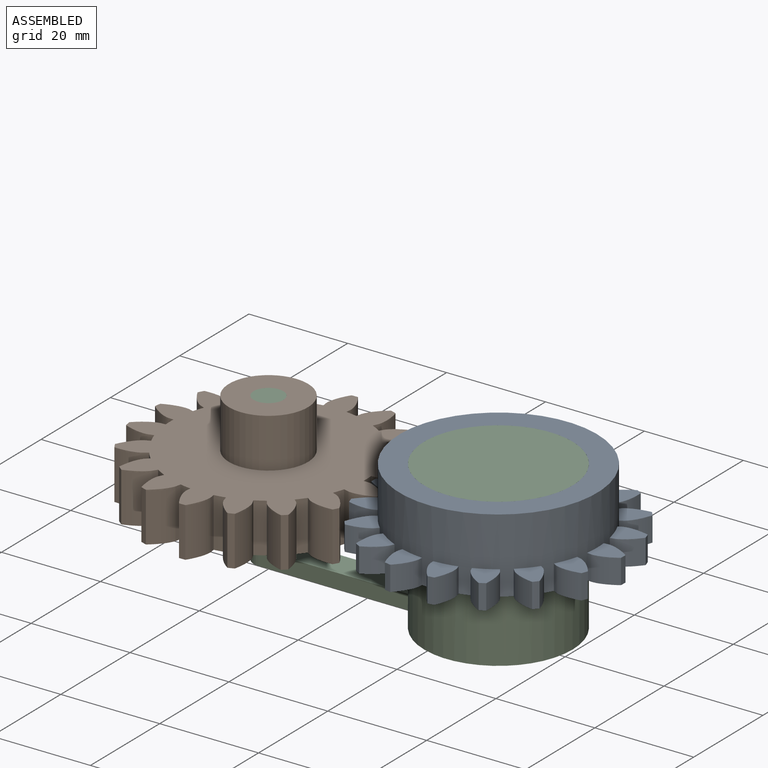
[diagram: assembled view]
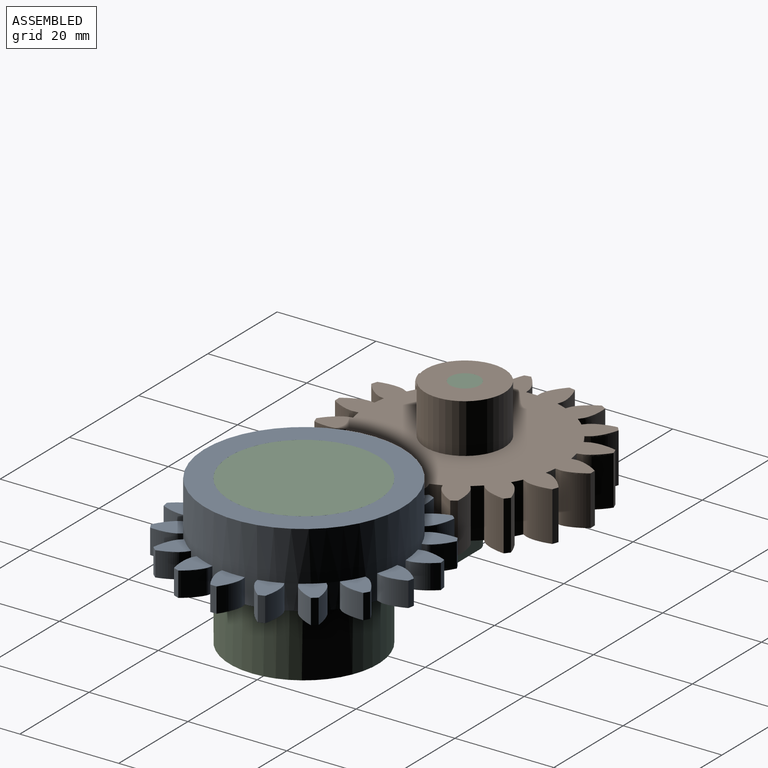
[diagram: assembled view, second angle]
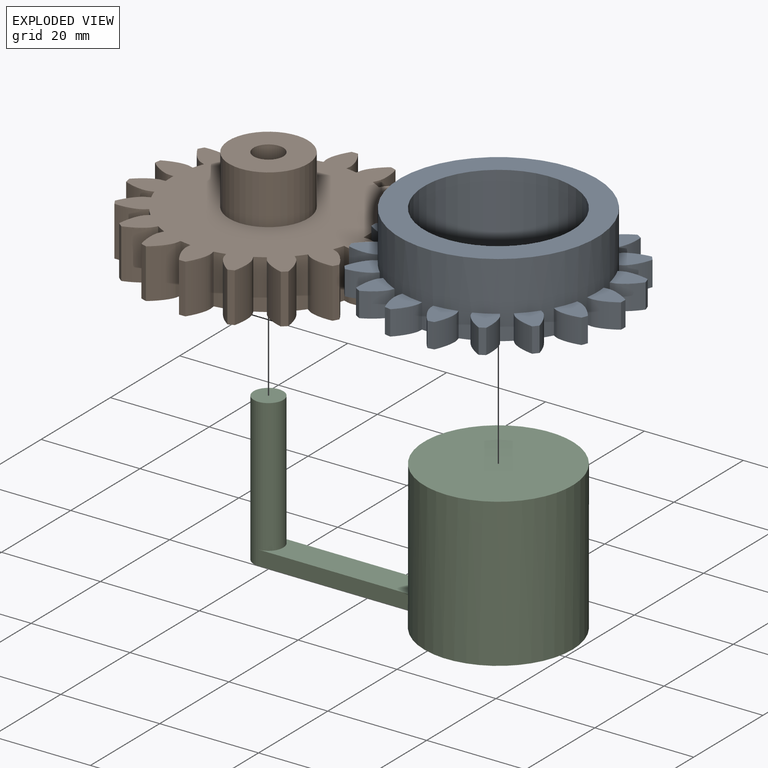
[diagram: exploded view]
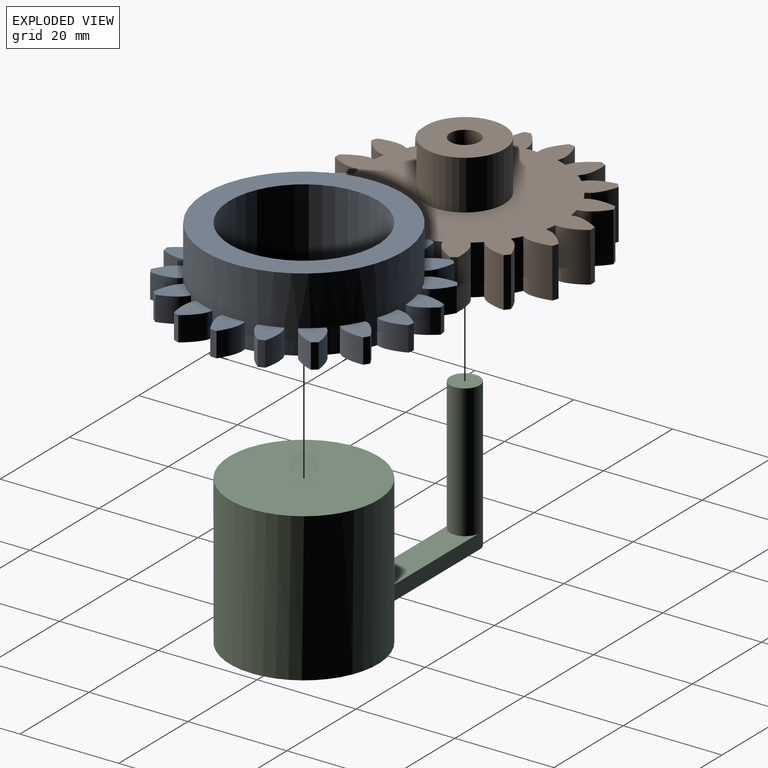
[diagram: exploded view, second angle]
ASSEMBLY  parts=3 mates=2
PART A: 94 faces, bbox 51.1x15x50.6 mm
  f0: plane 6.12x4.95mm, normal (0,-1,0), area 21mm2, adj f33,f43,f62,f92
  f1: plane 6.43x5.47mm, normal (0,-1,0), area 21mm2, adj f27,f61,f65,f92
  f2: plane 6.29x5.96mm, normal (0,-1,0), area 21mm2, adj f26,f59,f64,f92
  f3: plane 6.38x5.15mm, normal (0,-1,0), area 21mm2, adj f28,f56,f58,f92
  f4: plane 5.7x4.9mm, normal (0,-1,0), area 21mm2, adj f29,f55,f77,f92
  f5: plane 6.38x5.15mm, normal (0,-1,0), area 21mm2, adj f22,f74,f76,f92
  f6: plane 6.29x5.96mm, normal (0,-1,0), area 21mm2, adj f23,f68,f73,f92
  f7: plane 6.43x5.47mm, normal (0,-1,0), area 21mm2, adj f25,f67,f71,f92
  f8: plane 6.12x4.95mm, normal (0,-1,0), area 21mm2, adj f24,f70,f89,f92
  f9: plane 6.12x4.95mm, normal (0,-1,0), area 21mm2, adj f18,f86,f88,f92
  f10: plane 6.43x5.47mm, normal (0,-1,0), area 21mm2, adj f19,f80,f85,f92
  f11: plane 6.29x5.96mm, normal (0,-1,0), area 21mm2, adj f21,f79,f83,f92
  f12: plane 6.38x5.15mm, normal (0,-1,0), area 21mm2, adj f20,f38,f82,f92
  f13: plane 5.7x4.9mm, normal (0,-1,0), area 21mm2, adj f36,f37,f41,f92
  f14: plane 6.38x5.15mm, normal (0,-1,0), area 21mm2, adj f34,f40,f50,f92
  f15: plane 6.29x5.96mm, normal (0,-1,0), area 21mm2, adj f31,f49,f53,f92
  f16: plane 6.43x5.47mm, normal (0,-1,0), area 21mm2, adj f30,f47,f52,f92
  f17: plane 6.12x4.95mm, normal (0,-1,0), area 21mm2, adj f32,f44,f46,f92
  f18: cylinder r=25.56mm len=5mm, axis (0,1,0), area 6.4mm2, adj f9,f35,f86,f88
  f19: cylinder r=25.56mm len=5mm, axis (0,1,0), area 6.4mm2, adj f10,f35,f80,f85
  f20: cylinder r=25.56mm len=5mm, axis (0,1,0), area 6.4mm2, adj f12,f35,f38,f82
  f21: cylinder r=25.56mm len=5mm, axis (0,1,0), area 6.4mm2, adj f11,f35,f79,f83
  f22: cylinder r=25.56mm len=5mm, axis (0,1,0), area 6.4mm2, adj f5,f35,f74,f76
  f23: cylinder r=25.56mm len=5mm, axis (0,1,0), area 6.4mm2, adj f6,f35,f68,f73
  f24: cylinder r=25.56mm len=5mm, axis (0,1,0), area 6.4mm2, adj f8,f35,f70,f89
  f25: cylinder r=25.56mm len=5mm, axis (0,1,0), area 6.4mm2, adj f7,f35,f67,f71
  f26: cylinder r=25.56mm len=5mm, axis (0,1,0), area 6.4mm2, adj f2,f35,f59,f64
  f27: cylinder r=25.56mm len=5mm, axis (0,1,0), area 6.4mm2, adj f1,f35,f61,f65
  f28: cylinder r=25.56mm len=5mm, axis (0,1,0), area 6.4mm2, adj f3,f35,f56,f58
  f29: cylinder r=25.56mm len=5mm, axis (0,1,0), area 6.4mm2, adj f4,f35,f55,f77
  f30: cylinder r=25.56mm len=5mm, axis (0,1,0), area 6.4mm2, adj f16,f35,f47,f52
  f31: cylinder r=25.56mm len=5mm, axis (0,1,0), area 6.4mm2, adj f15,f35,f49,f53
  f32: cylinder r=25.56mm len=5mm, axis (0,1,0), area 6.4mm2, adj f17,f35,f44,f46
  f33: cylinder r=25.56mm len=5mm, axis (0,1,0), area 6.4mm2, adj f0,f35,f43,f62
  f34: cylinder r=25.56mm len=5mm, axis (0,1,0), area 6.4mm2, adj f14,f35,f40,f50
  f35: plane 51.11x50.54mm, normal (0,1,0), area 928.7mm2, adj f18,f19,f20,f21,f22,f23,f24,f25
  f36: cylinder r=25.56mm len=5mm, axis (0,1,0), area 6.4mm2, adj f13,f35,f37,f41
  f37: extruded ~5.68x5mm, area 30.6mm2, adj f13,f35,f36,f39
  f38: extruded ~5x4.75mm, area 30.6mm2, adj f12,f20,f35,f39
  f39: cylinder r=20.01mm len=5mm, axis (0,1,0), area 11.5mm2, adj f35,f37,f38,f92
  f40: extruded ~5x4.75mm, area 30.6mm2, adj f14,f34,f35,f42
  f41: extruded ~5.68x5mm, area 30.6mm2, adj f13,f35,f36,f42
  f42: cylinder r=20.01mm len=5mm, axis (0,1,0), area 11.5mm2, adj f35,f40,f41,f92
  f43: extruded ~5.3x5mm, area 30.6mm2, adj f0,f33,f35,f45
  f44: extruded ~5.3x5mm, area 30.6mm2, adj f17,f32,f35,f45
  f45: cylinder r=20.01mm len=5mm, axis (0,1,0), area 11.5mm2, adj f35,f43,f44,f92
  f46: extruded ~5.89x5mm, area 30.6mm2, adj f17,f32,f35,f48
  f47: extruded ~5x4.32mm, area 30.6mm2, adj f16,f30,f35,f48
  f48: cylinder r=20.01mm len=5mm, axis (0,1,0), area 11.5mm2, adj f35,f46,f47,f92
  f49: extruded ~5x4.96mm, area 30.6mm2, adj f15,f31,f35,f51
  f50: extruded ~5.92x5mm, area 30.6mm2, adj f14,f34,f35,f51
  f51: cylinder r=20.01mm len=5mm, axis (0,1,0), area 11.5mm2, adj f35,f49,f50,f92
  f52: extruded ~5.77x5mm, area 30.6mm2, adj f16,f30,f35,f54
  f53: extruded ~5.45x5mm, area 30.6mm2, adj f15,f31,f35,f54
  f54: cylinder r=20.01mm len=5mm, axis (0,1,0), area 11.5mm2, adj f35,f52,f53,f92
  f55: extruded ~5.68x5mm, area 30.6mm2, adj f4,f29,f35,f57
  f56: extruded ~5x4.75mm, area 30.6mm2, adj f3,f28,f35,f57
  f57: cylinder r=20.01mm len=5mm, axis (0,1,0), area 11.5mm2, adj f35,f55,f56,f92
  f58: extruded ~5.92x5mm, area 30.6mm2, adj f3,f28,f35,f60
  f59: extruded ~5x4.96mm, area 30.6mm2, adj f2,f26,f35,f60
  f60: cylinder r=20.01mm len=5mm, axis (0,1,0), area 11.5mm2, adj f35,f58,f59,f92
  f61: extruded ~5x4.32mm, area 30.6mm2, adj f1,f27,f35,f63
  f62: extruded ~5.89x5mm, area 30.6mm2, adj f0,f33,f35,f63
  f63: cylinder r=20.01mm len=5mm, axis (0,1,0), area 11.5mm2, adj f35,f61,f62,f92
  f64: extruded ~5.45x5mm, area 30.6mm2, adj f2,f26,f35,f66
  f65: extruded ~5.77x5mm, area 30.6mm2, adj f1,f27,f35,f66
  f66: cylinder r=20.01mm len=5mm, axis (0,1,0), area 11.5mm2, adj f35,f64,f65,f92
  f67: extruded ~5.77x5mm, area 30.6mm2, adj f7,f25,f35,f69
  f68: extruded ~5.45x5mm, area 30.6mm2, adj f6,f23,f35,f69
  f69: cylinder r=20.01mm len=5mm, axis (0,1,0), area 11.5mm2, adj f35,f67,f68,f92
  f70: extruded ~5.89x5mm, area 30.6mm2, adj f8,f24,f35,f72
  f71: extruded ~5x4.32mm, area 30.6mm2, adj f7,f25,f35,f72
  f72: cylinder r=20.01mm len=5mm, axis (0,1,0), area 11.5mm2, adj f35,f70,f71,f92
  f73: extruded ~5x4.96mm, area 30.6mm2, adj f6,f23,f35,f75
  f74: extruded ~5.92x5mm, area 30.6mm2, adj f5,f22,f35,f75
  f75: cylinder r=20.01mm len=5mm, axis (0,1,0), area 11.5mm2, adj f35,f73,f74,f92
  f76: extruded ~5x4.75mm, area 30.6mm2, adj f5,f22,f35,f78
  f77: extruded ~5.68x5mm, area 30.6mm2, adj f4,f29,f35,f78
  f78: cylinder r=20.01mm len=5mm, axis (0,1,0), area 11.5mm2, adj f35,f76,f77,f92
  f79: extruded ~5.45x5mm, area 30.6mm2, adj f11,f21,f35,f81
  f80: extruded ~5.77x5mm, area 30.6mm2, adj f10,f19,f35,f81
  f81: cylinder r=20.01mm len=5mm, axis (0,1,0), area 11.5mm2, adj f35,f79,f80,f92
  f82: extruded ~5.92x5mm, area 30.6mm2, adj f12,f20,f35,f84
  f83: extruded ~5x4.96mm, area 30.6mm2, adj f11,f21,f35,f84
  f84: cylinder r=20.01mm len=5mm, axis (0,1,0), area 11.5mm2, adj f35,f82,f83,f92
  f85: extruded ~5x4.32mm, area 30.6mm2, adj f10,f19,f35,f87
  f86: extruded ~5.89x5mm, area 30.6mm2, adj f9,f18,f35,f87
  f87: cylinder r=20.01mm len=5mm, axis (0,1,0), area 11.5mm2, adj f35,f85,f86,f92
  f88: extruded ~5.3x5mm, area 30.6mm2, adj f9,f18,f35,f90
  f89: extruded ~5.3x5mm, area 30.6mm2, adj f8,f24,f35,f90
  f90: cylinder r=20.01mm len=5mm, axis (0,1,0), area 11.5mm2, adj f35,f88,f89,f92
  f91: cylinder r=15mm len=30mm, axis (0,-1,0), area 1413.7mm2, adj f35,f93
  f92: cylinder r=20mm len=40mm, axis (0,1,0), area 1256.6mm2, adj f0,f1,f2,f3,f4,f5,f6,f7
  f93: plane 40x40mm, normal (0,-1,0), area 549.8mm2, adj f91,f92
PART B: 77 faces, bbox 50.5x20x51.1 mm
  f0: cylinder r=25.56mm len=10mm, axis (0,1,0), area 12.7mm2, adj f17,f18,f69,f71
  f1: cylinder r=25.56mm len=10mm, axis (0,1,0), area 12.7mm2, adj f17,f18,f63,f68
  f2: cylinder r=25.56mm len=10mm, axis (0,1,0), area 12.7mm2, adj f17,f18,f21,f65
  f3: cylinder r=25.56mm len=10mm, axis (0,1,0), area 12.7mm2, adj f17,f18,f62,f66
  f4: cylinder r=25.56mm len=10mm, axis (0,1,0), area 12.7mm2, adj f17,f18,f54,f59
  f5: cylinder r=25.56mm len=10mm, axis (0,1,0), area 12.7mm2, adj f17,f18,f56,f60
  f6: cylinder r=25.56mm len=10mm, axis (0,1,0), area 12.7mm2, adj f17,f18,f51,f53
  f7: cylinder r=25.56mm len=10mm, axis (0,1,0), area 12.7mm2, adj f17,f18,f50,f72
  f8: cylinder r=25.56mm len=10mm, axis (0,1,0), area 12.7mm2, adj f17,f18,f42,f47
  f9: cylinder r=25.56mm len=10mm, axis (0,1,0), area 12.7mm2, adj f17,f18,f44,f48
  f10: cylinder r=25.56mm len=10mm, axis (0,1,0), area 12.7mm2, adj f17,f18,f39,f41
  f11: cylinder r=25.56mm len=10mm, axis (0,1,0), area 12.7mm2, adj f17,f18,f38,f57
  f12: cylinder r=25.56mm len=10mm, axis (0,1,0), area 12.7mm2, adj f17,f18,f35,f45
  f13: cylinder r=25.56mm len=10mm, axis (0,1,0), area 12.7mm2, adj f17,f18,f32,f36
  f14: cylinder r=25.56mm len=10mm, axis (0,1,0), area 12.7mm2, adj f17,f18,f27,f29
  f15: cylinder r=25.56mm len=10mm, axis (0,1,0), area 12.7mm2, adj f17,f18,f26,f33
  f16: cylinder r=25.56mm len=10mm, axis (0,1,0), area 12.7mm2, adj f17,f18,f23,f30
  f17: plane 51.11x50.54mm, normal (0,-1,0), area 1426.3mm2, adj f0,f1,f2,f3,f4,f5,f6,f7
  f18: plane 51.11x50.54mm, normal (0,1,0), area 1599.1mm2, adj f0,f1,f2,f3,f4,f5,f6,f7
  f19: cylinder r=25.56mm len=10mm, axis (0,1,0), area 12.7mm2, adj f17,f18,f20,f24
  f20: extruded ~10x5.5mm, area 63.2mm2, adj f17,f18,f19,f22
  f21: extruded ~10x5.5mm, area 63.2mm2, adj f2,f17,f18,f22
  f22: cylinder r=19.81mm len=10mm, axis (0,1,0), area 22.7mm2, adj f17,f18,f20,f21
  f23: extruded ~10x4.39mm, area 63.2mm2, adj f16,f17,f18,f25
  f24: extruded ~10x6.08mm, area 63.2mm2, adj f17,f18,f19,f25
  f25: cylinder r=19.81mm len=10mm, axis (0,1,0), area 22.7mm2, adj f17,f18,f23,f24
  f26: extruded ~10x6.1mm, area 63.2mm2, adj f15,f17,f18,f28
  f27: extruded ~10x5.07mm, area 63.2mm2, adj f14,f17,f18,f28
  f28: cylinder r=19.81mm len=10mm, axis (0,1,0), area 22.7mm2, adj f17,f18,f26,f27
  f29: extruded ~10x5.58mm, area 63.2mm2, adj f14,f17,f18,f31
  f30: extruded ~10x5.93mm, area 63.2mm2, adj f16,f17,f18,f31
  f31: cylinder r=19.81mm len=10mm, axis (0,1,0), area 22.7mm2, adj f17,f18,f29,f30
  f32: extruded ~10x5.88mm, area 63.2mm2, adj f13,f17,f18,f34
  f33: extruded ~10x4.95mm, area 63.2mm2, adj f15,f17,f18,f34
  f34: cylinder r=19.81mm len=10mm, axis (0,1,0), area 22.7mm2, adj f17,f18,f32,f33
  f35: extruded ~10x4.95mm, area 63.2mm2, adj f12,f17,f18,f37
  f36: extruded ~10x5.88mm, area 63.2mm2, adj f13,f17,f18,f37
  f37: cylinder r=19.81mm len=10mm, axis (0,1,0), area 22.7mm2, adj f17,f18,f35,f36
  f38: extruded ~10x5.5mm, area 63.2mm2, adj f11,f17,f18,f40
  f39: extruded ~10x5.5mm, area 63.2mm2, adj f10,f17,f18,f40
  f40: cylinder r=19.81mm len=10mm, axis (0,1,0), area 22.7mm2, adj f17,f18,f38,f39
  f41: extruded ~10x6.08mm, area 63.2mm2, adj f10,f17,f18,f43
  f42: extruded ~10x4.39mm, area 63.2mm2, adj f8,f17,f18,f43
  f43: cylinder r=19.81mm len=10mm, axis (0,1,0), area 22.7mm2, adj f17,f18,f41,f42
  f44: extruded ~10x5.07mm, area 63.2mm2, adj f9,f17,f18,f46
  f45: extruded ~10x6.1mm, area 63.2mm2, adj f12,f17,f18,f46
  f46: cylinder r=19.81mm len=10mm, axis (0,1,0), area 22.7mm2, adj f17,f18,f44,f45
  f47: extruded ~10x5.93mm, area 63.2mm2, adj f8,f17,f18,f49
  f48: extruded ~10x5.58mm, area 63.2mm2, adj f9,f17,f18,f49
  f49: cylinder r=19.81mm len=10mm, axis (0,1,0), area 22.7mm2, adj f17,f18,f47,f48
  f50: extruded ~10x5.88mm, area 63.2mm2, adj f7,f17,f18,f52
  f51: extruded ~10x4.95mm, area 63.2mm2, adj f6,f17,f18,f52
  f52: cylinder r=19.81mm len=10mm, axis (0,1,0), area 22.7mm2, adj f17,f18,f50,f51
  f53: extruded ~10x6.1mm, area 63.2mm2, adj f6,f17,f18,f55
  f54: extruded ~10x5.07mm, area 63.2mm2, adj f4,f17,f18,f55
  f55: cylinder r=19.81mm len=10mm, axis (0,1,0), area 22.7mm2, adj f17,f18,f53,f54
  f56: extruded ~10x4.39mm, area 63.2mm2, adj f5,f17,f18,f58
  f57: extruded ~10x6.08mm, area 63.2mm2, adj f11,f17,f18,f58
  f58: cylinder r=19.81mm len=10mm, axis (0,1,0), area 22.7mm2, adj f17,f18,f56,f57
  f59: extruded ~10x5.58mm, area 63.2mm2, adj f4,f17,f18,f61
  f60: extruded ~10x5.93mm, area 63.2mm2, adj f5,f17,f18,f61
  f61: cylinder r=19.81mm len=10mm, axis (0,1,0), area 22.7mm2, adj f17,f18,f59,f60
  f62: extruded ~10x5.93mm, area 63.2mm2, adj f3,f17,f18,f64
  f63: extruded ~10x5.58mm, area 63.2mm2, adj f1,f17,f18,f64
  f64: cylinder r=19.81mm len=10mm, axis (0,1,0), area 22.7mm2, adj f17,f18,f62,f63
  f65: extruded ~10x6.08mm, area 63.2mm2, adj f2,f17,f18,f67
  f66: extruded ~10x4.39mm, area 63.2mm2, adj f3,f17,f18,f67
  f67: cylinder r=19.81mm len=10mm, axis (0,1,0), area 22.7mm2, adj f17,f18,f65,f66
  f68: extruded ~10x5.07mm, area 63.2mm2, adj f1,f17,f18,f70
  f69: extruded ~10x6.1mm, area 63.2mm2, adj f0,f17,f18,f70
  f70: cylinder r=19.81mm len=10mm, axis (0,1,0), area 22.7mm2, adj f17,f18,f68,f69
  f71: extruded ~10x4.95mm, area 63.2mm2, adj f0,f17,f18,f73
  f72: extruded ~10x5.88mm, area 63.2mm2, adj f7,f17,f18,f73
  f73: cylinder r=19.81mm len=10mm, axis (0,1,0), area 22.7mm2, adj f17,f18,f71,f72
  f74: cylinder r=3mm len=20mm, axis (0,-1,0), area 377mm2, adj f18,f76
  f75: cylinder r=8mm len=16mm, axis (0,1,0), area 502.7mm2, adj f17,f76
  f76: plane 16x16mm, normal (0,-1,0), area 172.8mm2, adj f74,f75
PART C: 8 faces, bbox 64.5x30x30 mm
  f0: plane 31.8x6mm, normal (0,-1,0), area 175.5mm2, adj f1,f2,f3,f4
  f1: cylinder r=3mm len=30mm, axis (0,1,0), area 537.2mm2, adj f0,f2,f4,f5,f6
  f2: plane 31.8x3mm, normal (0,0,-1), area 95.4mm2, adj f0,f1,f3,f5
  f3: cylinder r=15mm len=30mm, axis (0,1,0), area 2809.3mm2, adj f0,f2,f4,f5,f7
  f4: plane 31.8x3mm, normal (0,0,1), area 95.4mm2, adj f0,f1,f3,f5
  f5: plane 64.5x30mm, normal (0,1,0), area 910.6mm2, adj f1,f2,f3,f4
  f6: plane 6x6mm, normal (0,-1,0), area 28.3mm2, adj f1
  f7: plane 30x30mm, normal (0,-1,0), area 706.9mm2, adj f3
PLACE A rot(axis=(-0.88,0.33,-0.33),97deg) t=(46.5,0,-15)mm
PLACE B rot(axis=(-0.88,-0.33,0.33),97deg) t=(0,0,-20)mm
PLACE C rot(axis=(-1,0,0),90deg) t=(0,0,-30)mm fixed
MATE revolute A.f91 <-> C.f3  axis (0,0,1) through (46.5,0,0)mm
MATE revolute B.f74 <-> C.f1  axis (0,0,1) through (0,0,0)mm
